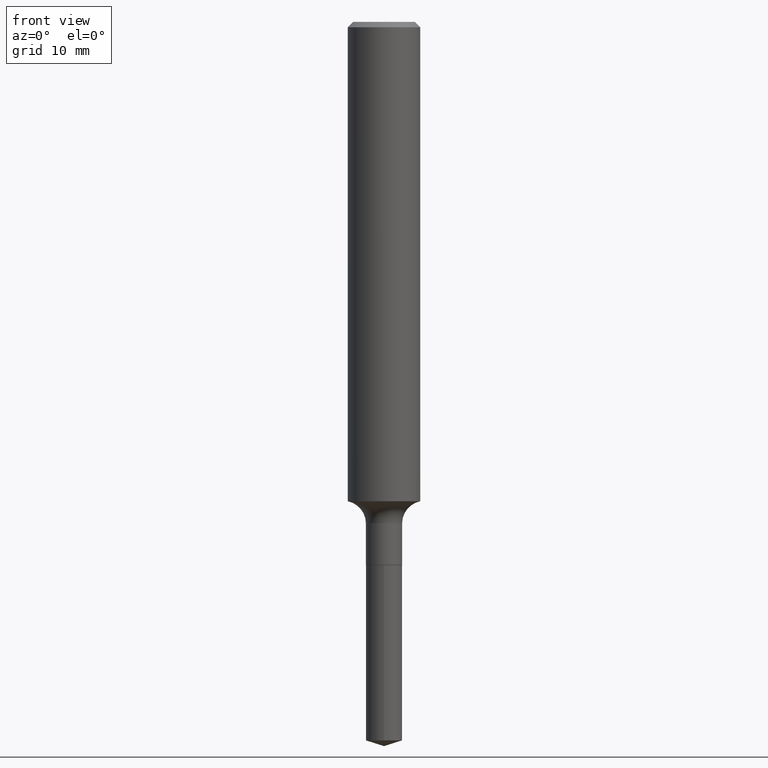
[diagram: clean part render]
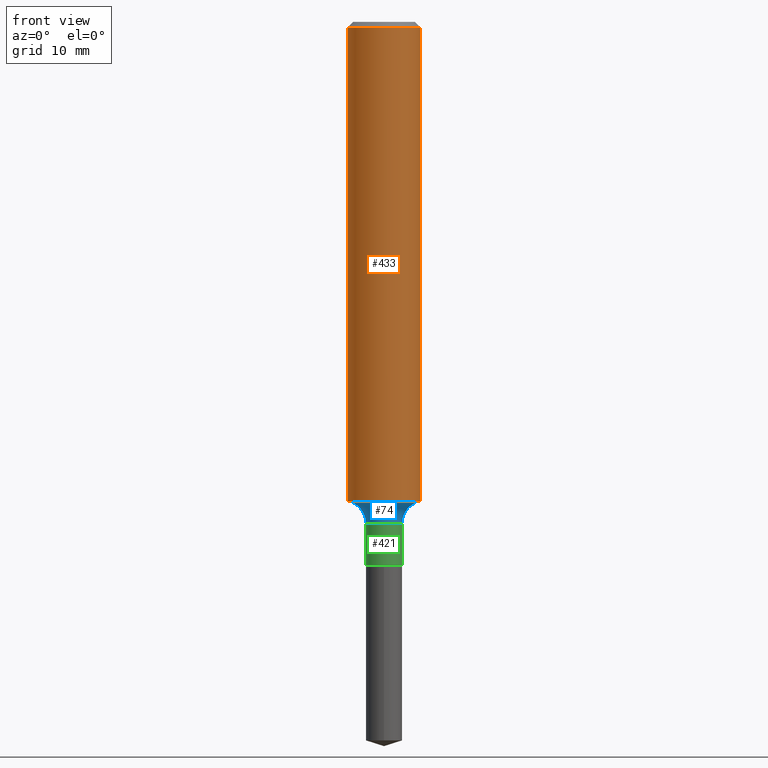
[diagram: same view with three faces highlighted in distinct colors, each labeled with its STEP entity id]
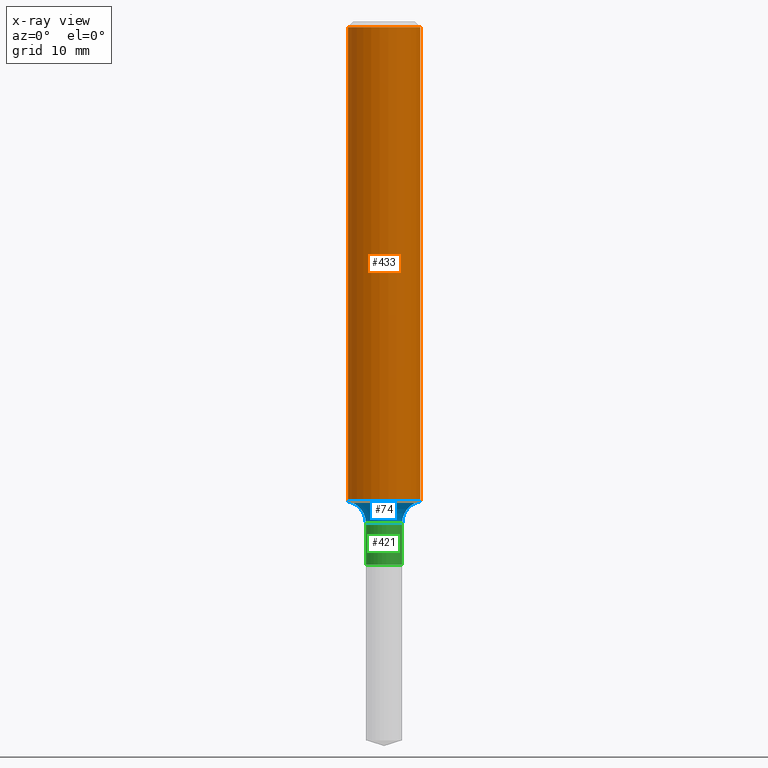
[diagram: x-ray of the same camera — body ghosted, the three highlighted faces saturated]
A machine part, front view with three faces highlighted in distinct colors.
The next image is the same camera in x-ray (body ghosted, the three faces saturated) — at least one of them is partly hidden behind the body in this view.
Their STEP definitions:

[orange] entity #433 — the highlighted cylindrical surface (edge-blend (fillet) strip) has radius 3.175 mm, axis along (-0, 0, 1).
#18 = CARTESIAN_POINT ( 'NONE',  ( 4.046653142340180452E-29, -5.777548213052970297E-15, -1.654755575742896889 ) ) ;
#30 = AXIS2_PLACEMENT_3D ( 'NONE', #18, #165, #461 ) ;
#42 = CARTESIAN_POINT ( 'NONE',  ( -0.1250000000000001110, 8.881784197001260212E-16, -6.148668862818637832E-30 ) ) ;
#50 = DIRECTION ( 'NONE',  ( 1.000000000000000000, -6.982962677686266711E-15, 4.876176775795935232E-29 ) ) ;
#61 = CARTESIAN_POINT ( 'NONE',  ( 0.000000000000000000, 0.000000000000000000, 0.000000000000000000 ) ) ;
#64 = CARTESIAN_POINT ( 'NONE',  ( 0.1250000000000000000, -9.383356098140928781E-16, -0.01875000000000013461 ) ) ;
#78 = DIRECTION ( 'NONE',  ( 1.000000000000000000, -6.982962677686266711E-15, 0.000000000000000000 ) ) ;
#83 = ORIENTED_EDGE ( 'NONE', *, *, #268, .T. ) ;
#90 = ORIENTED_EDGE ( 'NONE', *, *, #417, .F. ) ;
#93 = VECTOR ( 'NONE', #117, 39.37007874015748143 ) ;
#117 = DIRECTION ( 'NONE',  ( -2.445468806185136877E-29, 3.491481338843145188E-15, 1.000000000000000000 ) ) ;
#121 = VERTEX_POINT ( 'NONE', #64 ) ;
#122 = VERTEX_POINT ( 'NONE', #364 ) ;
#137 = DIRECTION ( 'NONE',  ( -2.445468806185136877E-29, 3.491481338843145188E-15, 1.000000000000000000 ) ) ;
#164 = VERTEX_POINT ( 'NONE', #253 ) ;
#165 = DIRECTION ( 'NONE',  ( -2.445468806185136597E-29, 3.491481338843145583E-15, 1.000000000000000000 ) ) ;
#180 = EDGE_CURVE ( 'NONE', #309, #164, #279, .T. ) ;
#183 = CARTESIAN_POINT ( 'NONE',  ( 4.585254011597163874E-31, -6.546527510330944066E-17, -0.01875000000000013461 ) ) ;
#201 = CARTESIAN_POINT ( 'NONE',  ( 0.1250000000000001110, -8.728703347107841277E-16, 6.095220969744924646E-30 ) ) ;
#204 = LINE ( 'NONE', #201, #336 ) ;
#239 = CIRCLE ( 'NONE', #405, 0.1250000000000000000 ) ;
#245 = CYLINDRICAL_SURFACE ( 'NONE', #473, 0.1250000000000001110 ) ;
#253 = CARTESIAN_POINT ( 'NONE',  ( 0.1250000000000001943, -6.650418547763754425E-15, -1.654755575742896889 ) ) ;
#268 = EDGE_CURVE ( 'NONE', #164, #121, #204, .T. ) ;
#279 = CIRCLE ( 'NONE', #30, 0.1250000000000001943 ) ;
#309 = VERTEX_POINT ( 'NONE', #402 ) ;
#330 = DIRECTION ( 'NONE',  ( -2.445468806185136597E-29, 3.491481338843145583E-15, 1.000000000000000000 ) ) ;
#336 = VECTOR ( 'NONE', #137, 39.37007874015748143 ) ;
#344 = EDGE_LOOP ( 'NONE', ( #90, #409, #83, #419 ) ) ;
#358 = DIRECTION ( 'NONE',  ( -2.445468806185136597E-29, 3.491481338843145583E-15, 1.000000000000000000 ) ) ;
#364 = CARTESIAN_POINT ( 'NONE',  ( -0.1250000000000000000, -2.033328324378012517E-15, -0.01875000000000013461 ) ) ;
#381 = LINE ( 'NONE', #42, #93 ) ;
#402 = CARTESIAN_POINT ( 'NONE',  ( -0.1250000000000001943, -4.889369793352843487E-15, -1.654755575742896889 ) ) ;
#405 = AXIS2_PLACEMENT_3D ( 'NONE', #183, #330, #78 ) ;
#409 = ORIENTED_EDGE ( 'NONE', *, *, #180, .T. ) ;
#417 = EDGE_CURVE ( 'NONE', #309, #122, #381, .T. ) ;
#419 = ORIENTED_EDGE ( 'NONE', *, *, #467, .F. ) ;
#425 = FACE_OUTER_BOUND ( 'NONE', #344, .T. ) ;
#433 = ADVANCED_FACE ( 'NONE', ( #425 ), #245, .T. ) ;
#461 = DIRECTION ( 'NONE',  ( 1.000000000000000000, -6.982962677686267499E-15, 0.000000000000000000 ) ) ;
#467 = EDGE_CURVE ( 'NONE', #122, #121, #239, .T. ) ;
#473 = AXIS2_PLACEMENT_3D ( 'NONE', #61, #358, #50 ) ;

[blue] entity #74 — the highlighted toroidal blend (fillet) surface has major radius 3.5687 mm and minor (blend) radius 1.9812 mm.
#18 = CARTESIAN_POINT ( 'NONE',  ( 4.046653142340180452E-29, -5.777548213052970297E-15, -1.654755575742896889 ) ) ;
#21 = AXIS2_PLACEMENT_3D ( 'NONE', #212, #57, #249 ) ;
#30 = AXIS2_PLACEMENT_3D ( 'NONE', #18, #165, #461 ) ;
#55 = ORIENTED_EDGE ( 'NONE', *, *, #297, .F. ) ;
#57 = DIRECTION ( 'NONE',  ( -2.445468806185136597E-29, 3.491481338843145583E-15, 1.000000000000000000 ) ) ;
#58 = ORIENTED_EDGE ( 'NONE', *, *, #275, .T. ) ;
#62 = CARTESIAN_POINT ( 'NONE',  ( 0.1404999999999999305, -7.025558750020173486E-15, -1.731200000000000072 ) ) ;
#74 = ADVANCED_FACE ( 'NONE', ( #371 ), #412, .F. ) ;
#92 = ORIENTED_EDGE ( 'NONE', *, *, #468, .T. ) ;
#100 = DIRECTION ( 'NONE',  ( 1.000000000000000000, -6.982962677686264344E-15, 0.000000000000000000 ) ) ;
#105 = CIRCLE ( 'NONE', #21, 0.06249999999999997224 ) ;
#129 = AXIS2_PLACEMENT_3D ( 'NONE', #62, #257, #100 ) ;
#133 = VERTEX_POINT ( 'NONE', #281 ) ;
#164 = VERTEX_POINT ( 'NONE', #253 ) ;
#165 = DIRECTION ( 'NONE',  ( -2.445468806185136597E-29, 3.491481338843145583E-15, 1.000000000000000000 ) ) ;
#180 = EDGE_CURVE ( 'NONE', #309, #164, #279, .T. ) ;
#185 = AXIS2_PLACEMENT_3D ( 'NONE', #446, #221, #210 ) ;
#195 = CIRCLE ( 'NONE', #129, 0.07799999999999993050 ) ;
#210 = DIRECTION ( 'NONE',  ( -1.000000000000000000, 7.105427357601005014E-15, 0.000000000000000000 ) ) ;
#212 = CARTESIAN_POINT ( 'NONE',  ( 4.233595597267708565E-29, -6.044452493805253770E-15, -1.731200000000000072 ) ) ;
#218 = DIRECTION ( 'NONE',  ( 1.000000000000000000, -6.982962677686268288E-15, 4.883557194083113462E-29 ) ) ;
#221 = DIRECTION ( 'NONE',  ( 7.105427357601001859E-15, 1.000000000000000000, -3.491481338843145583E-15 ) ) ;
#238 = ORIENTED_EDGE ( 'NONE', *, *, #180, .F. ) ;
#249 = DIRECTION ( 'NONE',  ( 1.000000000000000000, -6.982962677686265922E-15, 0.000000000000000000 ) ) ;
#253 = CARTESIAN_POINT ( 'NONE',  ( 0.1250000000000001943, -6.650418547763754425E-15, -1.654755575742896889 ) ) ;
#257 = DIRECTION ( 'NONE',  ( -6.982962677686266711E-15, -1.000000000000000000, 3.491481338843145583E-15 ) ) ;
#275 = EDGE_CURVE ( 'NONE', #133, #394, #105, .T. ) ;
#279 = CIRCLE ( 'NONE', #30, 0.1250000000000001943 ) ;
#281 = CARTESIAN_POINT ( 'NONE',  ( -0.06249999999999997224, -5.850527921883303265E-15, -1.731200000000000072 ) ) ;
#297 = EDGE_CURVE ( 'NONE', #164, #394, #195, .T. ) ;
#309 = VERTEX_POINT ( 'NONE', #402 ) ;
#313 = EDGE_LOOP ( 'NONE', ( #238, #92, #58, #55 ) ) ;
#320 = AXIS2_PLACEMENT_3D ( 'NONE', #329, #403, #218 ) ;
#329 = CARTESIAN_POINT ( 'NONE',  ( 4.233595597267708565E-29, -6.044452493805253770E-15, -1.731200000000000072 ) ) ;
#371 = FACE_OUTER_BOUND ( 'NONE', #313, .T. ) ;
#394 = VERTEX_POINT ( 'NONE', #420 ) ;
#396 = CIRCLE ( 'NONE', #185, 0.07799999999999993050 ) ;
#402 = CARTESIAN_POINT ( 'NONE',  ( -0.1250000000000001943, -4.889369793352843487E-15, -1.654755575742896889 ) ) ;
#403 = DIRECTION ( 'NONE',  ( -2.445468806185136597E-29, 3.491481338843145583E-15, 1.000000000000000000 ) ) ;
#412 = TOROIDAL_SURFACE ( 'NONE', #320, 0.1404999999999999305, 0.07799999999999993050 ) ;
#420 = CARTESIAN_POINT ( 'NONE',  ( 0.06249999999999997224, -6.480887661160645440E-15, -1.731200000000000072 ) ) ;
#446 = CARTESIAN_POINT ( 'NONE',  ( -0.1404999999999999305, -5.046139950062314095E-15, -1.731200000000000072 ) ) ;
#461 = DIRECTION ( 'NONE',  ( 1.000000000000000000, -6.982962677686267499E-15, 0.000000000000000000 ) ) ;
#468 = EDGE_CURVE ( 'NONE', #309, #133, #396, .T. ) ;

[green] entity #421 — the highlighted cylindrical surface (edge-blend (fillet) strip) has radius 1.5875 mm, axis along (-0, 0, 1).
#21 = AXIS2_PLACEMENT_3D ( 'NONE', #212, #57, #249 ) ;
#37 = AXIS2_PLACEMENT_3D ( 'NONE', #106, #361, #114 ) ;
#57 = DIRECTION ( 'NONE',  ( -2.445468806185136597E-29, 3.491481338843145583E-15, 1.000000000000000000 ) ) ;
#70 = LINE ( 'NONE', #217, #162 ) ;
#81 = LINE ( 'NONE', #487, #188 ) ;
#86 = CYLINDRICAL_SURFACE ( 'NONE', #213, 0.06249999999999997918 ) ;
#87 = ORIENTED_EDGE ( 'NONE', *, *, #480, .T. ) ;
#105 = CIRCLE ( 'NONE', #21, 0.06249999999999997224 ) ;
#106 = CARTESIAN_POINT ( 'NONE',  ( 4.584031277194039439E-29, -6.544781769661477203E-15, -1.874500000000000277 ) ) ;
#114 = DIRECTION ( 'NONE',  ( 1.000000000000000000, -6.982962677686262766E-15, 0.000000000000000000 ) ) ;
#127 = EDGE_CURVE ( 'NONE', #220, #394, #70, .T. ) ;
#133 = VERTEX_POINT ( 'NONE', #281 ) ;
#160 = CARTESIAN_POINT ( 'NONE',  ( 0.06250000000000000000, -6.981216937016868873E-15, -1.874500000000000277 ) ) ;
#162 = VECTOR ( 'NONE', #367, 39.37007874015748143 ) ;
#168 = EDGE_LOOP ( 'NONE', ( #278, #87, #380, #462 ) ) ;
#170 = DIRECTION ( 'NONE',  ( -2.445468806185136597E-29, 3.491481338843145583E-15, 1.000000000000000000 ) ) ;
#175 = CIRCLE ( 'NONE', #37, 0.06250000000000000000 ) ;
#188 = VECTOR ( 'NONE', #235, 39.37007874015748143 ) ;
#212 = CARTESIAN_POINT ( 'NONE',  ( 4.233595597267708565E-29, -6.044452493805253770E-15, -1.731200000000000072 ) ) ;
#213 = AXIS2_PLACEMENT_3D ( 'NONE', #355, #170, #321 ) ;
#217 = CARTESIAN_POINT ( 'NONE',  ( 0.06249999999999997918, -4.364351673553915708E-16, 3.047610484872459170E-30 ) ) ;
#220 = VERTEX_POINT ( 'NONE', #160 ) ;
#235 = DIRECTION ( 'NONE',  ( -2.445468806185136877E-29, 3.491481338843145188E-15, 1.000000000000000000 ) ) ;
#249 = DIRECTION ( 'NONE',  ( 1.000000000000000000, -6.982962677686265922E-15, 0.000000000000000000 ) ) ;
#271 = FACE_OUTER_BOUND ( 'NONE', #168, .T. ) ;
#275 = EDGE_CURVE ( 'NONE', #133, #394, #105, .T. ) ;
#278 = ORIENTED_EDGE ( 'NONE', *, *, #379, .F. ) ;
#281 = CARTESIAN_POINT ( 'NONE',  ( -0.06249999999999997224, -5.850527921883303265E-15, -1.731200000000000072 ) ) ;
#321 = DIRECTION ( 'NONE',  ( 1.000000000000000000, -6.982962677686267499E-15, 4.876176775795936353E-29 ) ) ;
#355 = CARTESIAN_POINT ( 'NONE',  ( 0.000000000000000000, 0.000000000000000000, 0.000000000000000000 ) ) ;
#361 = DIRECTION ( 'NONE',  ( -2.445468806185136597E-29, 3.491481338843145583E-15, 1.000000000000000000 ) ) ;
#367 = DIRECTION ( 'NONE',  ( -2.445468806185136877E-29, 3.491481338843145188E-15, 1.000000000000000000 ) ) ;
#379 = EDGE_CURVE ( 'NONE', #422, #133, #81, .T. ) ;
#380 = ORIENTED_EDGE ( 'NONE', *, *, #127, .T. ) ;
#394 = VERTEX_POINT ( 'NONE', #420 ) ;
#398 = CARTESIAN_POINT ( 'NONE',  ( -0.06250000000000000000, -5.850527921883303265E-15, -1.874500000000000277 ) ) ;
#420 = CARTESIAN_POINT ( 'NONE',  ( 0.06249999999999997224, -6.480887661160645440E-15, -1.731200000000000072 ) ) ;
#421 = ADVANCED_FACE ( 'NONE', ( #271 ), #86, .T. ) ;
#422 = VERTEX_POINT ( 'NONE', #398 ) ;
#462 = ORIENTED_EDGE ( 'NONE', *, *, #275, .F. ) ;
#480 = EDGE_CURVE ( 'NONE', #422, #220, #175, .T. ) ;
#487 = CARTESIAN_POINT ( 'NONE',  ( -0.06249999999999997918, 4.440892098500624683E-16, -3.074334431409315413E-30 ) ) ;